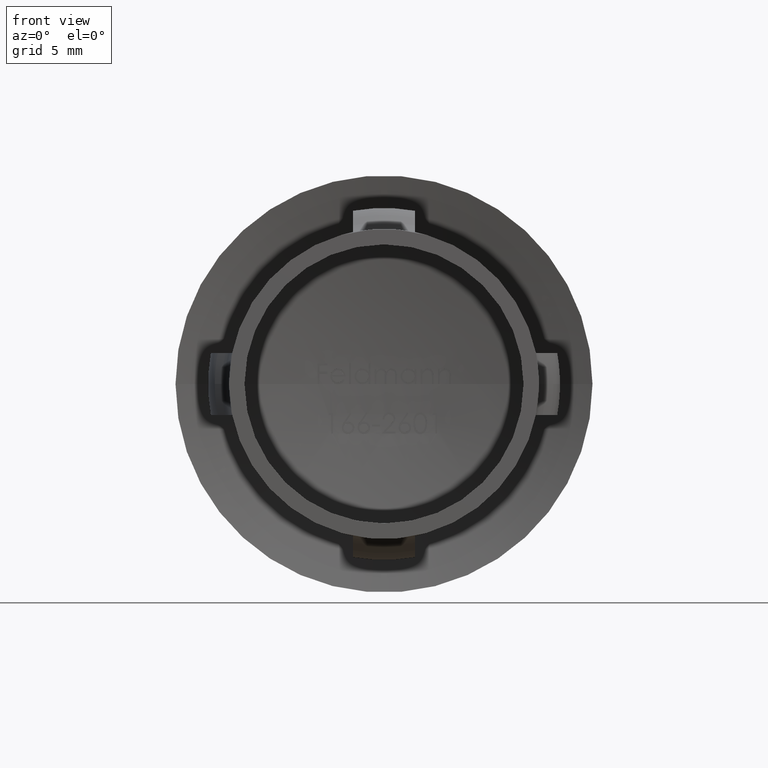
[diagram: clean part render]
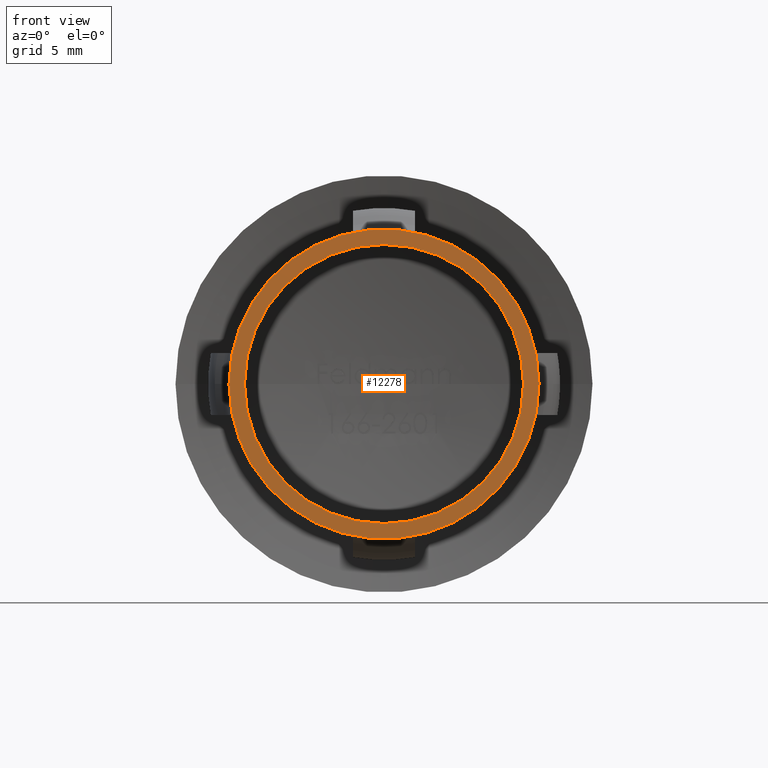
[diagram: same view with one face highlighted and labeled with its STEP entity id]
A machine part, front view. The second image highlights one B-rep face of the part: STEP entity #12278.
In plain terms, the highlighted planar face has unit normal (-0, -1, 0).
Its self-contained STEP definition (entity closure, byte-faithful):
#618 = ORIENTED_EDGE ( 'NONE', *, *, #6022, .T. ) ;
#1099 = VERTEX_POINT ( 'NONE', #4409 ) ;
#1426 = AXIS2_PLACEMENT_3D ( 'NONE', #6189, #1659, #9232 ) ;
#1659 = DIRECTION ( 'NONE',  ( -2.904862207577519418E-15, -1.000000000000000000, -0.000000000000000000 ) ) ;
#1880 = ORIENTED_EDGE ( 'NONE', *, *, #12864, .F. ) ;
#1970 = DIRECTION ( 'NONE',  ( -2.904862207577519418E-15, -1.000000000000000000, 0.000000000000000000 ) ) ;
#2169 = CARTESIAN_POINT ( 'NONE',  ( 9.000000000000001776, 1.299350253895341760E-15, 0.000000000000000000 ) ) ;
#2255 = AXIS2_PLACEMENT_3D ( 'NONE', #10683, #11832, #12860 ) ;
#2480 = DIRECTION ( 'NONE',  ( 1.000000000000000000, -2.904862207577519813E-15, 0.000000000000000000 ) ) ;
#3630 = CARTESIAN_POINT ( 'NONE',  ( -7.407398629322664971E-14, 2.775557561562891351E-14, 0.000000000000000000 ) ) ;
#3687 = CIRCLE ( 'NONE', #1426, 9.000000000000076383 ) ;
#3918 = EDGE_LOOP ( 'NONE', ( #1880, #7713 ) ) ;
#3989 = FACE_BOUND ( 'NONE', #3918, .T. ) ;
#4144 = CIRCLE ( 'NONE', #9267, 10.00000000000007638 ) ;
#4231 = EDGE_CURVE ( 'NONE', #1099, #7499, #3687, .T. ) ;
#4257 = AXIS2_PLACEMENT_3D ( 'NONE', #2169, #1970, #10704 ) ;
#4409 = CARTESIAN_POINT ( 'NONE',  ( -9.000000000000150990, 5.389933548382681073E-14, 1.102182119232631716E-15 ) ) ;
#4765 = DIRECTION ( 'NONE',  ( -2.904862207577519418E-15, -1.000000000000000000, -0.000000000000000000 ) ) ;
#4914 = AXIS2_PLACEMENT_3D ( 'NONE', #8951, #4765, #2480 ) ;
#6022 = EDGE_CURVE ( 'NONE', #9824, #10247, #13696, .T. ) ;
#6189 = CARTESIAN_POINT ( 'NONE',  ( -7.407398629322664971E-14, 2.775557561562891351E-14, 0.000000000000000000 ) ) ;
#6836 = CARTESIAN_POINT ( 'NONE',  ( 10.00000000000000178, -1.293046460146503919E-15, 0.000000000000000000 ) ) ;
#7499 = VERTEX_POINT ( 'NONE', #12339 ) ;
#7713 = ORIENTED_EDGE ( 'NONE', *, *, #4231, .F. ) ;
#8322 = DIRECTION ( 'NONE',  ( -2.904862207577519418E-15, -1.000000000000000000, -0.000000000000000000 ) ) ;
#8951 = CARTESIAN_POINT ( 'NONE',  ( -7.407398629322664971E-14, 2.775557561562891351E-14, 0.000000000000000000 ) ) ;
#9232 = DIRECTION ( 'NONE',  ( 1.000000000000000000, -2.904862207577519024E-15, 0.000000000000000000 ) ) ;
#9267 = AXIS2_PLACEMENT_3D ( 'NONE', #3630, #8322, #11539 ) ;
#9728 = ORIENTED_EDGE ( 'NONE', *, *, #10388, .T. ) ;
#9824 = VERTEX_POINT ( 'NONE', #6836 ) ;
#10074 = CIRCLE ( 'NONE', #2255, 9.000000000000076383 ) ;
#10247 = VERTEX_POINT ( 'NONE', #11021 ) ;
#10388 = EDGE_CURVE ( 'NONE', #10247, #9824, #4144, .T. ) ;
#10683 = CARTESIAN_POINT ( 'NONE',  ( -7.407398629322664971E-14, 2.775557561562891351E-14, 0.000000000000000000 ) ) ;
#10704 = DIRECTION ( 'NONE',  ( 1.000000000000000000, -2.904862207577519418E-15, 0.000000000000000000 ) ) ;
#11021 = CARTESIAN_POINT ( 'NONE',  ( -10.00000000000015099, 5.680419769140434435E-14, 1.224646799147367062E-15 ) ) ;
#11517 = EDGE_LOOP ( 'NONE', ( #618, #9728 ) ) ;
#11539 = DIRECTION ( 'NONE',  ( 1.000000000000000000, -2.904862207577519813E-15, 0.000000000000000000 ) ) ;
#11832 = DIRECTION ( 'NONE',  ( -2.904862207577519418E-15, -1.000000000000000000, -0.000000000000000000 ) ) ;
#12278 = ADVANCED_FACE ( 'NONE', ( #13463, #3989 ), #13873, .T. ) ;
#12339 = CARTESIAN_POINT ( 'NONE',  ( 9.000000000000001776, 1.611815747431018063E-15, 0.000000000000000000 ) ) ;
#12860 = DIRECTION ( 'NONE',  ( 1.000000000000000000, -2.904862207577519024E-15, 0.000000000000000000 ) ) ;
#12864 = EDGE_CURVE ( 'NONE', #7499, #1099, #10074, .T. ) ;
#13463 = FACE_OUTER_BOUND ( 'NONE', #11517, .T. ) ;
#13696 = CIRCLE ( 'NONE', #4914, 10.00000000000007638 ) ;
#13873 = PLANE ( 'NONE',  #4257 ) ;